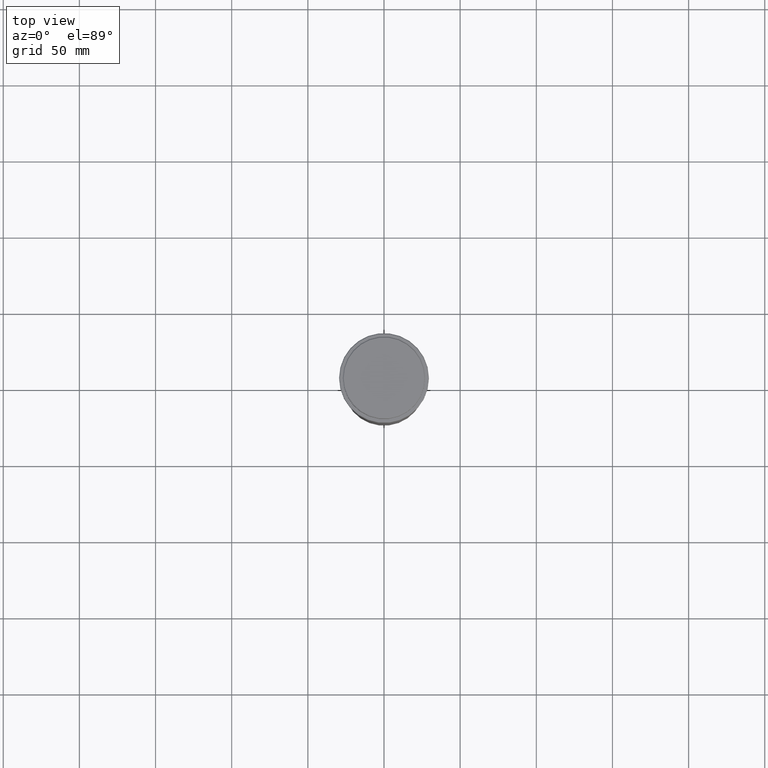
[diagram: clean part render]
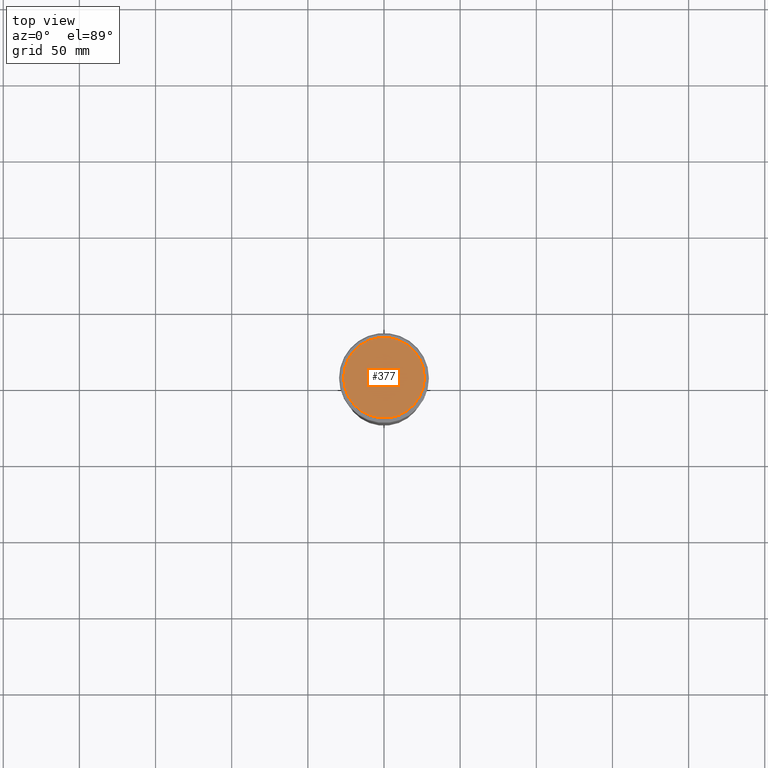
[diagram: same view with one face highlighted and labeled with its STEP entity id]
A machine part, top view. The second image highlights one B-rep face of the part: STEP entity #377.
In plain terms, the highlighted planar face has unit normal (0, -0, 1).
Its self-contained STEP definition (entity closure, byte-faithful):
#125 = CARTESIAN_POINT ( 'NONE',  ( -26.50000000000007816, 0.000000000000000000, 0.000000000000000000 ) ) ;
#135 = PLANE ( 'NONE',  #698 ) ;
#249 = VERTEX_POINT ( 'NONE', #985 ) ;
#349 = CARTESIAN_POINT ( 'NONE',  ( 0.000000000000000000, 0.000000000000000000, 0.000000000000000000 ) ) ;
#377 = ADVANCED_FACE ( 'NONE', ( #1327 ), #135, .T. ) ;
#396 = DIRECTION ( 'NONE',  ( -0.000000000000000000, -0.000000000000000000, 1.000000000000000000 ) ) ;
#426 = CIRCLE ( 'NONE', #1217, 26.50000000000007816 ) ;
#456 = ORIENTED_EDGE ( 'NONE', *, *, #923, .T. ) ;
#487 = EDGE_LOOP ( 'NONE', ( #805, #456 ) ) ;
#594 = DIRECTION ( 'NONE',  ( 1.000000000000000000, 0.000000000000000000, 0.000000000000000000 ) ) ;
#599 = CARTESIAN_POINT ( 'NONE',  ( 0.000000000000000000, 0.000000000000000000, 0.000000000000000000 ) ) ;
#669 = DIRECTION ( 'NONE',  ( 1.000000000000000000, 0.000000000000000000, 0.000000000000000000 ) ) ;
#695 = DIRECTION ( 'NONE',  ( -0.000000000000000000, -0.000000000000000000, 1.000000000000000000 ) ) ;
#698 = AXIS2_PLACEMENT_3D ( 'NONE', #1349, #885, #594 ) ;
#762 = VERTEX_POINT ( 'NONE', #125 ) ;
#784 = EDGE_CURVE ( 'NONE', #762, #249, #1404, .T. ) ;
#805 = ORIENTED_EDGE ( 'NONE', *, *, #784, .T. ) ;
#835 = DIRECTION ( 'NONE',  ( 1.000000000000000000, 0.000000000000000000, 0.000000000000000000 ) ) ;
#885 = DIRECTION ( 'NONE',  ( 0.000000000000000000, -0.000000000000000000, 1.000000000000000000 ) ) ;
#923 = EDGE_CURVE ( 'NONE', #249, #762, #426, .T. ) ;
#985 = CARTESIAN_POINT ( 'NONE',  ( 26.50000000000007816, 3.275930187719175074E-15, 0.000000000000000000 ) ) ;
#1135 = AXIS2_PLACEMENT_3D ( 'NONE', #349, #695, #669 ) ;
#1217 = AXIS2_PLACEMENT_3D ( 'NONE', #599, #396, #835 ) ;
#1327 = FACE_OUTER_BOUND ( 'NONE', #487, .T. ) ;
#1349 = CARTESIAN_POINT ( 'NONE',  ( 0.000000000000000000, 0.000000000000000000, 0.000000000000000000 ) ) ;
#1404 = CIRCLE ( 'NONE', #1135, 26.50000000000007816 ) ;